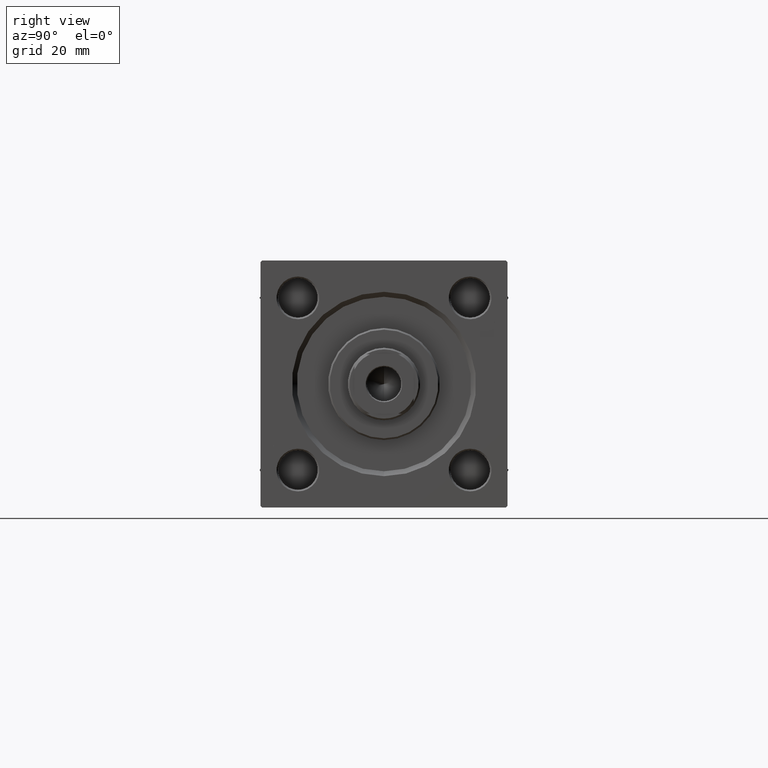
[diagram: clean part render]
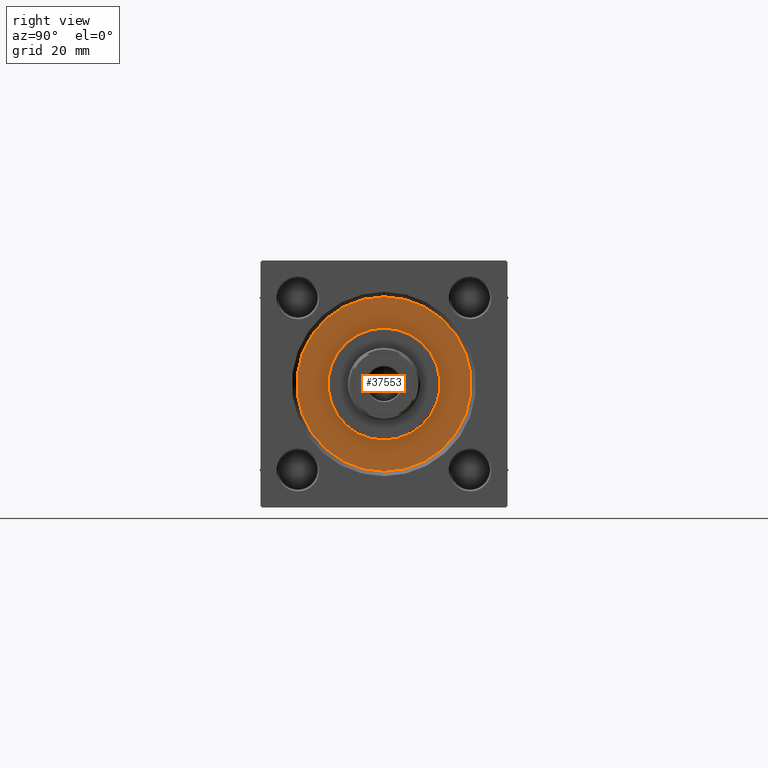
[diagram: same view with one face highlighted and labeled with its STEP entity id]
A machine part, right view. The second image highlights one B-rep face of the part: STEP entity #37553.
In plain terms, the highlighted planar face has unit normal (1, 0, 0).
Its self-contained STEP definition (entity closure, byte-faithful):
#1240 = AXIS2_PLACEMENT_3D ( 'NONE', #12247, #3896, #50089 ) ;
#2230 = CIRCLE ( 'NONE', #27346, 26.50000000000000355 ) ;
#3896 = DIRECTION ( 'NONE',  ( 0.000000000000000000, 0.000000000000000000, 1.000000000000000000 ) ) ;
#6853 = PLANE ( 'NONE',  #33126 ) ;
#8038 = AXIS2_PLACEMENT_3D ( 'NONE', #11287, #31066, #26752 ) ;
#10392 = CARTESIAN_POINT ( 'NONE',  ( 0.000000000000000000, 0.000000000000000000, 28.69999999999999929 ) ) ;
#10856 = CARTESIAN_POINT ( 'NONE',  ( 17.00000000000000000, 2.081899558550500280E-15, 28.69999999999999929 ) ) ;
#11013 = VERTEX_POINT ( 'NONE', #44219 ) ;
#11287 = CARTESIAN_POINT ( 'NONE',  ( 0.000000000000000000, 0.000000000000000000, 28.69999999999999929 ) ) ;
#11902 = EDGE_CURVE ( 'NONE', #40898, #20036, #49069, .T. ) ;
#12247 = CARTESIAN_POINT ( 'NONE',  ( 0.000000000000000000, 0.000000000000000000, 28.69999999999999929 ) ) ;
#12888 = CIRCLE ( 'NONE', #8038, 17.00000000000000000 ) ;
#13632 = DIRECTION ( 'NONE',  ( 1.000000000000000000, 0.000000000000000000, 0.000000000000000000 ) ) ;
#13956 = FACE_BOUND ( 'NONE', #18253, .T. ) ;
#18253 = EDGE_LOOP ( 'NONE', ( #41853, #39284 ) ) ;
#18452 = AXIS2_PLACEMENT_3D ( 'NONE', #33838, #18848, #41702 ) ;
#18848 = DIRECTION ( 'NONE',  ( 0.000000000000000000, 0.000000000000000000, 1.000000000000000000 ) ) ;
#20036 = VERTEX_POINT ( 'NONE', #29362 ) ;
#21540 = EDGE_CURVE ( 'NONE', #21570, #11013, #40324, .T. ) ;
#21570 = VERTEX_POINT ( 'NONE', #43182 ) ;
#22573 = DIRECTION ( 'NONE',  ( 1.000000000000000000, 0.000000000000000000, -0.000000000000000000 ) ) ;
#25349 = ORIENTED_EDGE ( 'NONE', *, *, #30036, .T. ) ;
#26752 = DIRECTION ( 'NONE',  ( 1.000000000000000000, 0.000000000000000000, 0.000000000000000000 ) ) ;
#27346 = AXIS2_PLACEMENT_3D ( 'NONE', #33933, #48408, #13632 ) ;
#29362 = CARTESIAN_POINT ( 'NONE',  ( -17.00000000000000000, 0.000000000000000000, 28.69999999999999929 ) ) ;
#30036 = EDGE_CURVE ( 'NONE', #11013, #21570, #2230, .T. ) ;
#30187 = FACE_OUTER_BOUND ( 'NONE', #40664, .T. ) ;
#31066 = DIRECTION ( 'NONE',  ( 0.000000000000000000, 0.000000000000000000, 1.000000000000000000 ) ) ;
#33126 = AXIS2_PLACEMENT_3D ( 'NONE', #10392, #37299, #22573 ) ;
#33838 = CARTESIAN_POINT ( 'NONE',  ( 0.000000000000000000, 0.000000000000000000, 28.69999999999999929 ) ) ;
#33933 = CARTESIAN_POINT ( 'NONE',  ( 0.000000000000000000, 0.000000000000000000, 28.69999999999999929 ) ) ;
#37299 = DIRECTION ( 'NONE',  ( 0.000000000000000000, 0.000000000000000000, 1.000000000000000000 ) ) ;
#37553 = ADVANCED_FACE ( 'NONE', ( #13956, #30187 ), #6853, .T. ) ;
#37954 = EDGE_CURVE ( 'NONE', #20036, #40898, #12888, .T. ) ;
#39284 = ORIENTED_EDGE ( 'NONE', *, *, #11902, .F. ) ;
#40324 = CIRCLE ( 'NONE', #18452, 26.50000000000000355 ) ;
#40664 = EDGE_LOOP ( 'NONE', ( #47186, #25349 ) ) ;
#40898 = VERTEX_POINT ( 'NONE', #10856 ) ;
#41702 = DIRECTION ( 'NONE',  ( 1.000000000000000000, 0.000000000000000000, 0.000000000000000000 ) ) ;
#41853 = ORIENTED_EDGE ( 'NONE', *, *, #37954, .F. ) ;
#43182 = CARTESIAN_POINT ( 'NONE',  ( -26.50000000000000355, 0.000000000000000000, 28.69999999999999929 ) ) ;
#44219 = CARTESIAN_POINT ( 'NONE',  ( 26.50000000000000355, 3.245314017740486554E-15, 28.69999999999999929 ) ) ;
#47186 = ORIENTED_EDGE ( 'NONE', *, *, #21540, .T. ) ;
#48408 = DIRECTION ( 'NONE',  ( 0.000000000000000000, 0.000000000000000000, 1.000000000000000000 ) ) ;
#49069 = CIRCLE ( 'NONE', #1240, 17.00000000000000000 ) ;
#50089 = DIRECTION ( 'NONE',  ( 1.000000000000000000, 0.000000000000000000, 0.000000000000000000 ) ) ;